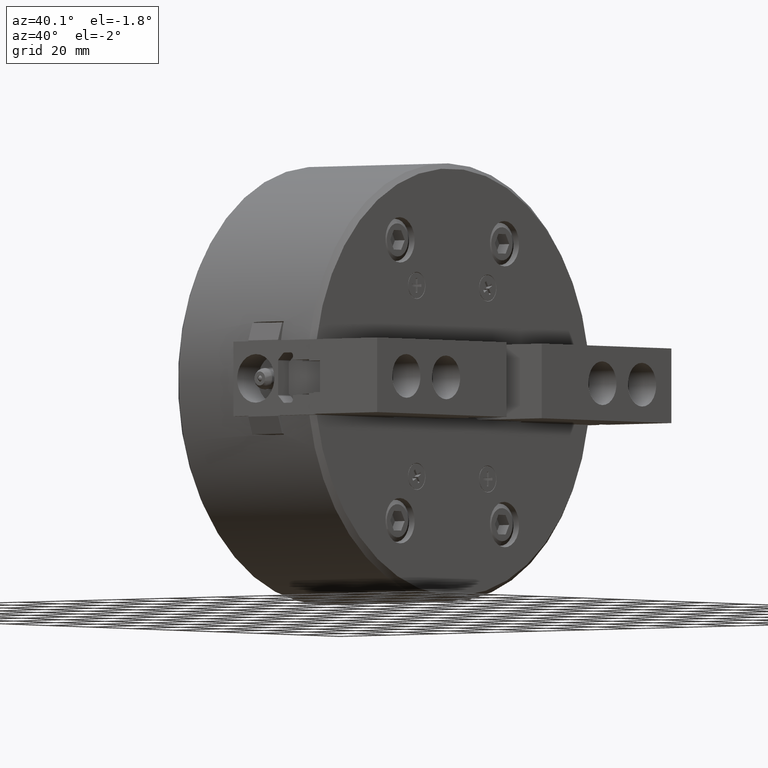
[diagram: clean part render]
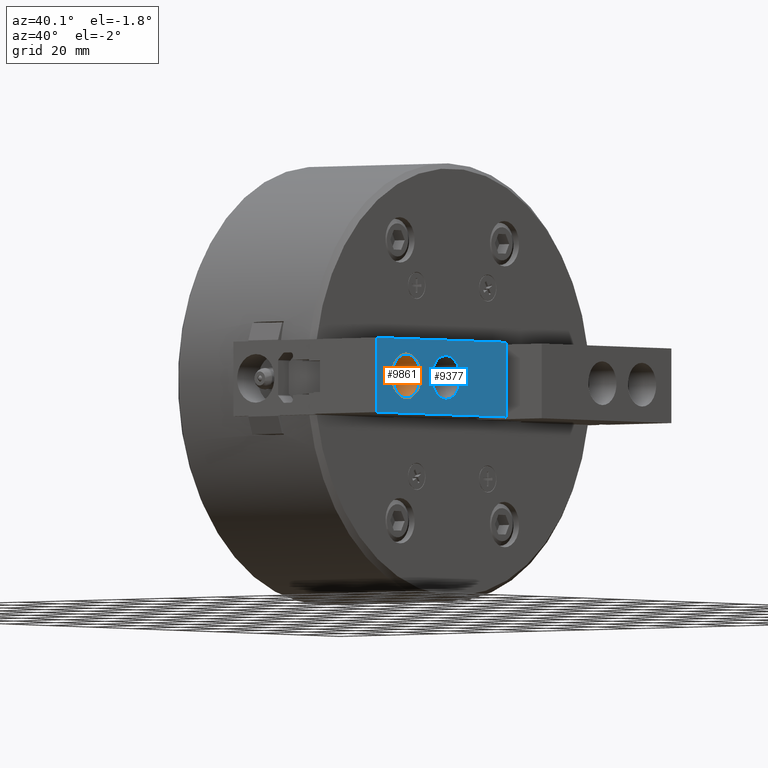
[diagram: same view with the hole feature highlighted: cylindrical wall and planar end face, labeled with their STEP entity ids]
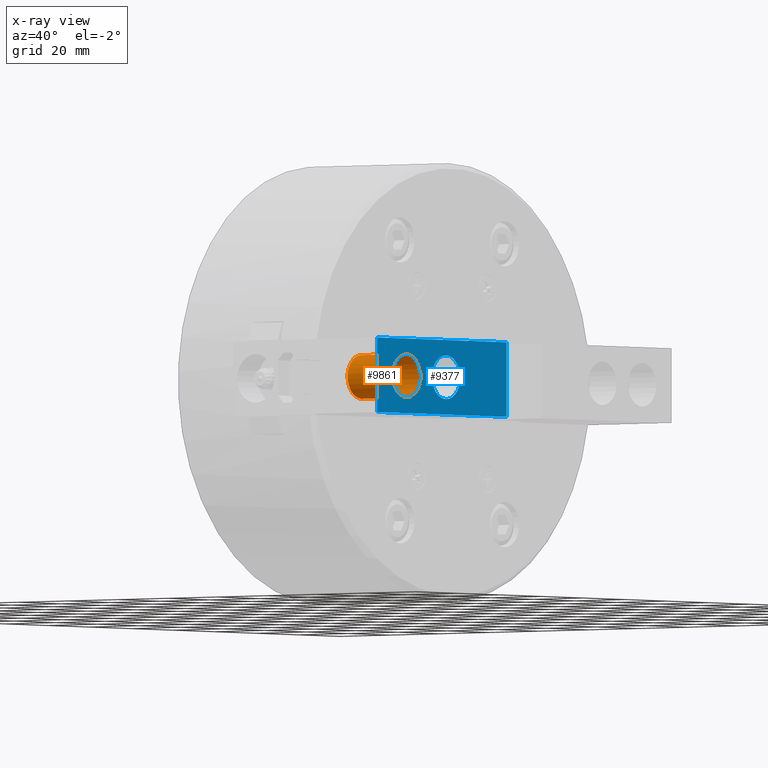
[diagram: x-ray of the same camera — body ghosted, the hole faces saturated]
A machine part, auxiliary view. The highlighted faces form one hole feature of diameter 13.5 mm: the cylindrical wall (entity #9861, orange) and its adjacent planar end face (entity #9377, blue) — they share a circular edge in the B-rep.
The next image is the same camera in x-ray (body ghosted, the hole faces saturated) — the bore reads through the body.
Wall:
#153=CYLINDRICAL_SURFACE('',#10785,6.75);
#291=CIRCLE('',#10014,6.75);
#328=CIRCLE('',#10109,6.75);
#3107=ORIENTED_EDGE('',*,*,#3486,.T.);
#3108=ORIENTED_EDGE('',*,*,#3638,.F.);
#3486=EDGE_CURVE('',#4777,#4777,#291,.T.);
#3638=EDGE_CURVE('',#4867,#4867,#328,.T.);
#4777=VERTEX_POINT('',#14081);
#4867=VERTEX_POINT('',#14399);
#8099=EDGE_LOOP('',(#3107));
#8100=EDGE_LOOP('',(#3108));
#8847=FACE_BOUND('',#8099,.T.);
#8848=FACE_BOUND('',#8100,.T.);
#9861=ADVANCED_FACE('',(#8847,#8848),#153,.F.);
#10014=AXIS2_PLACEMENT_3D('',#14080,#11182,#11183);
#10109=AXIS2_PLACEMENT_3D('',#14398,#11484,#11485);
#10785=AXIS2_PLACEMENT_3D('',#16499,#13468,#13469);
#11182=DIRECTION('',(1.,0.,0.));
#11183=DIRECTION('',(0.,-7.19588997442231E-15,1.));
#11484=DIRECTION('',(1.,0.,0.));
#11485=DIRECTION('',(0.,-7.19588997442231E-15,1.));
#13468=DIRECTION('',(1.,0.,0.));
#13469=DIRECTION('',(0.,-7.19588997442231E-15,1.));
#14080=CARTESIAN_POINT('',(29.,-56.4,-3.93839095021505E-13));
#14081=CARTESIAN_POINT('',(29.,-56.4,6.74999999999961));
#14398=CARTESIAN_POINT('',(11.,-56.4,-3.93839095021505E-13));
#14399=CARTESIAN_POINT('',(11.,-56.4,6.74999999999961));
#16499=CARTESIAN_POINT('',(29.,-56.4,-3.93839095021505E-13));
End face:
#290=CIRCLE('',#10013,6.75);
#291=CIRCLE('',#10014,6.75);
#915=ORIENTED_EDGE('',*,*,#3379,.F.);
#916=ORIENTED_EDGE('',*,*,#3481,.T.);
#917=ORIENTED_EDGE('',*,*,#3384,.T.);
#918=ORIENTED_EDGE('',*,*,#3484,.F.);
#919=ORIENTED_EDGE('',*,*,#3485,.T.);
#920=ORIENTED_EDGE('',*,*,#3486,.F.);
#3379=EDGE_CURVE('',#4709,#4710,#5605,.T.);
#3384=EDGE_CURVE('',#4714,#4715,#5610,.T.);
#3481=EDGE_CURVE('',#4709,#4714,#5679,.T.);
#3484=EDGE_CURVE('',#4710,#4715,#5680,.T.);
#3485=EDGE_CURVE('',#4776,#4776,#290,.T.);
#3486=EDGE_CURVE('',#4777,#4777,#291,.T.);
#4709=VERTEX_POINT('',#13845);
#4710=VERTEX_POINT('',#13847);
#4714=VERTEX_POINT('',#13857);
#4715=VERTEX_POINT('',#13858);
#4776=VERTEX_POINT('',#14079);
#4777=VERTEX_POINT('',#14081);
#5605=LINE('',#13846,#6551);
#5610=LINE('',#13856,#6556);
#5679=LINE('',#14070,#6625);
#5680=LINE('',#14077,#6626);
#6551=VECTOR('',#10988,1000.);
#6556=VECTOR('',#10995,1000.);
#6625=VECTOR('',#11170,1000.);
#6626=VECTOR('',#11179,1000.);
#7479=EDGE_LOOP('',(#915,#916,#917,#918));
#7480=EDGE_LOOP('',(#919));
#7481=EDGE_LOOP('',(#920));
#8227=FACE_BOUND('',#7479,.T.);
#8228=FACE_BOUND('',#7480,.T.);
#8229=FACE_BOUND('',#7481,.T.);
#8958=PLANE('',#10012);
#9377=ADVANCED_FACE('',(#8227,#8228,#8229),#8958,.F.);
#10012=AXIS2_PLACEMENT_3D('',#14076,#11177,#11178);
#10013=AXIS2_PLACEMENT_3D('',#14078,#11180,#11181);
#10014=AXIS2_PLACEMENT_3D('',#14080,#11182,#11183);
#10988=DIRECTION('',(0.,-6.98296267768627E-15,1.));
#10995=DIRECTION('',(0.,-6.98296267768627E-15,1.));
#11170=DIRECTION('',(0.,1.,6.98296267768627E-15));
#11177=DIRECTION('',(-1.,0.,0.));
#11178=DIRECTION('',(0.,6.98296267768627E-15,-1.));
#11179=DIRECTION('',(0.,1.,6.98296267768627E-15));
#11180=DIRECTION('',(-1.,0.,0.));
#11181=DIRECTION('',(0.,7.19588997442231E-15,-1.));
#11182=DIRECTION('',(1.,0.,0.));
#11183=DIRECTION('',(0.,-7.19588997442231E-15,1.));
#13845=CARTESIAN_POINT('',(29.,-70.3999999999999,-11.5000000000005));
#13846=CARTESIAN_POINT('',(29.,-70.4,-4.91600572509113E-13));
#13847=CARTESIAN_POINT('',(29.,-70.4000000000001,11.4999999999995));
#13856=CARTESIAN_POINT('',(29.,-8.39999999999999,-5.86568864925646E-14));
#13857=CARTESIAN_POINT('',(29.,-8.39999999999991,-11.5000000000001));
#13858=CARTESIAN_POINT('',(29.,-8.40000000000007,11.4999999999999));
#14070=CARTESIAN_POINT('',(29.,-70.3999999999999,-11.5000000000005));
#14076=CARTESIAN_POINT('',(29.,-70.4,-4.91600572509113E-13));
#14077=CARTESIAN_POINT('',(29.,-70.4000000000001,11.4999999999995));
#14078=CARTESIAN_POINT('',(29.,-37.4,-2.61162804145466E-13));
#14079=CARTESIAN_POINT('',(29.,-37.3999999999999,-6.75000000000026));
#14080=CARTESIAN_POINT('',(29.,-56.4,-3.93839095021505E-13));
#14081=CARTESIAN_POINT('',(29.,-56.4,6.74999999999961));